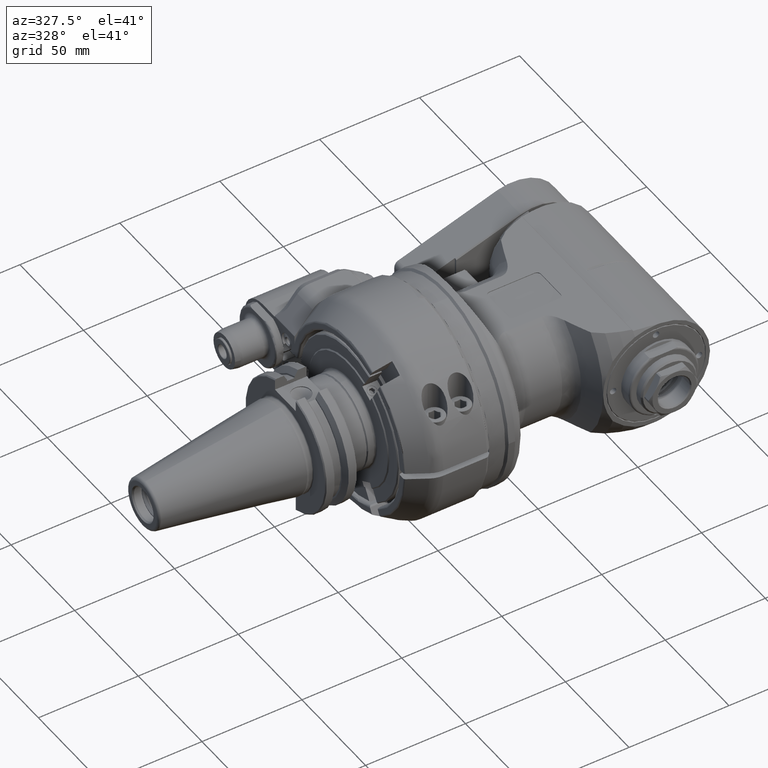
[diagram: clean part render]
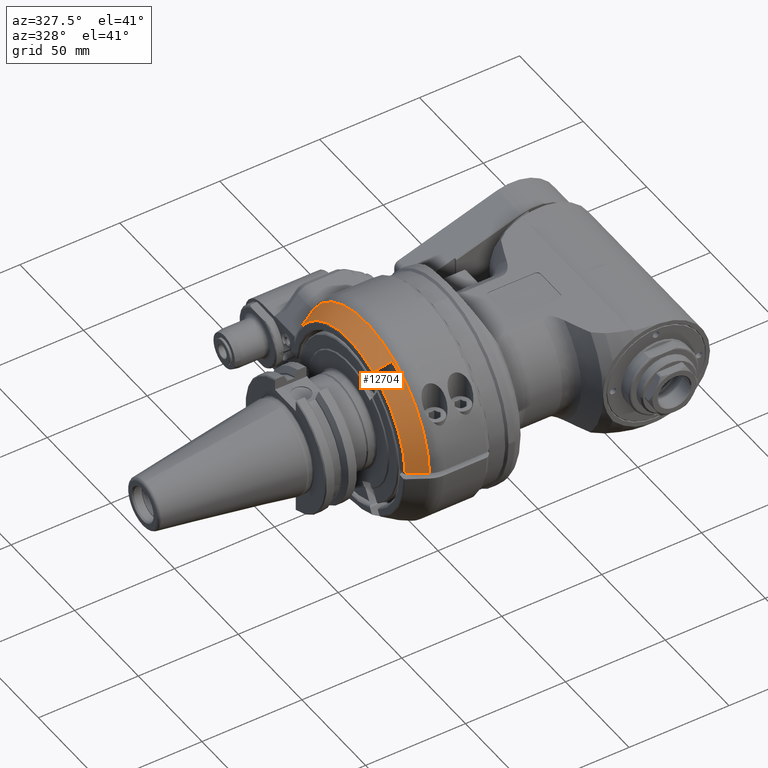
[diagram: same view with one face highlighted and labeled with its STEP entity id]
A machine part, auxiliary view. The second image highlights one B-rep face of the part: STEP entity #12704.
In plain terms, the highlighted conical surface has half-angle 30 deg.
Its self-contained STEP definition (entity closure, byte-faithful):
#289=(
BOUNDED_CURVE()
B_SPLINE_CURVE(2,(#21080,#21081,#21082),.UNSPECIFIED.,.F.,.F.)
B_SPLINE_CURVE_WITH_KNOTS((3,3),(-4.80707705791519,-2.95268713046296),
 .UNSPECIFIED.)
CURVE()
GEOMETRIC_REPRESENTATION_ITEM()
RATIONAL_B_SPLINE_CURVE((1.01149371983583,1.03091361245284,1.03364016221379))
REPRESENTATION_ITEM('')
);
#399=B_SPLINE_CURVE_WITH_KNOTS('',3,(#21198,#21199,#21200,#21201,#21202,
#21203,#21204,#21205,#21206,#21207),.UNSPECIFIED.,.F.,.F.,(4,3,3,4),(1.4337342611041E-5,
0.3333333333333,0.6666666666667,1.),.UNSPECIFIED.);
#402=B_SPLINE_CURVE_WITH_KNOTS('',3,(#21253,#21254,#21255,#21256,#21257,
#21258,#21259,#21260,#21261,#21262),.UNSPECIFIED.,.F.,.F.,(4,3,3,4),(0.,
0.3333333333333,0.6666666666667,0.999986602366628),.UNSPECIFIED.);
#406=B_SPLINE_CURVE_WITH_KNOTS('',3,(#21312,#21313,#21314,#21315,#21316,
#21317,#21318,#21319,#21320,#21321),.UNSPECIFIED.,.F.,.F.,(4,3,3,4),(2.38328188097675E-6,
0.3333333333333,0.6666666666667,1.),.UNSPECIFIED.);
#740=CONICAL_SURFACE('',#14173,46.84048999,0.523598775598299);
#1363=CIRCLE('',#14156,48.90747728811);
#1374=CIRCLE('',#14172,44.28867513459);
#1375=CIRCLE('',#14174,49.39230484541);
#1376=CIRCLE('',#14175,44.28867513459);
#2137=FACE_OUTER_BOUND('',#2952,.T.);
#2952=EDGE_LOOP('',(#9710,#9711,#9712,#9713,#9714,#9715,#9716,#9717));
#5654=VERTEX_POINT('',#21070);
#5655=VERTEX_POINT('',#21079);
#5680=VERTEX_POINT('',#21194);
#5682=VERTEX_POINT('',#21197);
#5684=VERTEX_POINT('',#21219);
#5695=VERTEX_POINT('',#21244);
#5700=VERTEX_POINT('',#21298);
#5701=VERTEX_POINT('',#21309);
#7117=EDGE_CURVE('',#5654,#5655,#289,.T.);
#7149=EDGE_CURVE('',#5682,#5680,#399,.T.);
#7153=EDGE_CURVE('',#5684,#5680,#1363,.T.);
#7166=EDGE_CURVE('',#5684,#5695,#402,.T.);
#7175=EDGE_CURVE('',#5700,#5695,#1374,.T.);
#7176=EDGE_CURVE('',#5655,#5701,#1375,.T.);
#7177=EDGE_CURVE('',#5682,#5654,#1376,.T.);
#7178=EDGE_CURVE('',#5700,#5701,#406,.T.);
#9710=ORIENTED_EDGE('',*,*,#7176,.F.);
#9711=ORIENTED_EDGE('',*,*,#7117,.F.);
#9712=ORIENTED_EDGE('',*,*,#7177,.F.);
#9713=ORIENTED_EDGE('',*,*,#7149,.T.);
#9714=ORIENTED_EDGE('',*,*,#7153,.F.);
#9715=ORIENTED_EDGE('',*,*,#7166,.T.);
#9716=ORIENTED_EDGE('',*,*,#7175,.F.);
#9717=ORIENTED_EDGE('',*,*,#7178,.T.);
#12704=ADVANCED_FACE('',(#2137),#740,.T.);
#14156=AXIS2_PLACEMENT_3D('',#21221,#16593,#16594);
#14172=AXIS2_PLACEMENT_3D('',#21307,#16631,#16632);
#14173=AXIS2_PLACEMENT_3D('',#21308,#16633,#16634);
#14174=AXIS2_PLACEMENT_3D('',#21310,#16635,#16636);
#14175=AXIS2_PLACEMENT_3D('',#21311,#16637,#16638);
#16593=DIRECTION('center_axis',(-1.,0.,0.));
#16594=DIRECTION('ref_axis',(0.,-0.560693997365684,0.828023092261376));
#16631=DIRECTION('center_axis',(-1.,0.,0.));
#16632=DIRECTION('ref_axis',(0.,-0.999426290895549,0.0338687033523017));
#16633=DIRECTION('center_axis',(1.,0.,0.));
#16634=DIRECTION('ref_axis',(0.,-1.,0.));
#16635=DIRECTION('center_axis',(1.,0.,0.));
#16636=DIRECTION('ref_axis',(0.,0.850334887822108,0.526241939180605));
#16637=DIRECTION('center_axis',(-1.,0.,0.));
#16638=DIRECTION('ref_axis',(0.,-0.429996871485802,0.902830377486504));
#21070=CARTESIAN_POINT('',(-51.,42.,14.05299772923));
#21079=CARTESIAN_POINT('',(-42.16025403784,42.,25.99230228245));
#21080=CARTESIAN_POINT('Ctrl Pts',(-50.9999999999919,42.,14.0529977292256));
#21081=CARTESIAN_POINT('Ctrl Pts',(-47.897889892267,42.,19.6974303643609));
#21082=CARTESIAN_POINT('Ctrl Pts',(-42.1602540378376,42.,25.992302282447));
#21194=CARTESIAN_POINT('',(-43.,-21.35995111525,43.9965205788));
#21197=CARTESIAN_POINT('',(-51.000000054817,-19.0439917563676,39.9851613015337));
#21198=CARTESIAN_POINT('Ctrl Pts',(-51.0000000936506,-19.0439917901449,
39.9851613594535));
#21199=CARTESIAN_POINT('Ctrl Pts',(-50.111001909048,-19.3014285975833,40.4310549896751));
#21200=CARTESIAN_POINT('Ctrl Pts',(-49.2222071099017,-19.5587779325861,
40.8767971131938));
#21201=CARTESIAN_POINT('Ctrl Pts',(-48.3333776153427,-19.8161122630835,
41.3225132481472));
#21202=CARTESIAN_POINT('Ctrl Pts',(-47.4445098887801,-20.0734576625286,
41.7682485550801));
#21203=CARTESIAN_POINT('Ctrl Pts',(-46.5556074638199,-20.3307880561776,
42.2139578712119));
#21204=CARTESIAN_POINT('Ctrl Pts',(-45.6667068043048,-20.5880951594333,
42.6596268471992));
#21205=CARTESIAN_POINT('Ctrl Pts',(-44.7778061447899,-20.845402262689,43.1052958231864));
#21206=CARTESIAN_POINT('Ctrl Pts',(-43.88890725072,-21.1026860755515,43.5509244590291));
#21207=CARTESIAN_POINT('Ctrl Pts',(-43.,-21.3599511152508,43.9965205787995));
#21219=CARTESIAN_POINT('',(-43.,-27.42212894174,40.4965205788));
#21221=CARTESIAN_POINT('Origin',(-43.,0.,0.));
#21244=CARTESIAN_POINT('',(-51.0000000512241,-25.1061695829229,36.485161300515));
#21253=CARTESIAN_POINT('Ctrl Pts',(-43.,-27.4221289417415,40.4965205787991));
#21254=CARTESIAN_POINT('Ctrl Pts',(-43.88890725073,-27.1648639020422,40.0509244590287));
#21255=CARTESIAN_POINT('Ctrl Pts',(-44.7778063956649,-26.9075800162392,
39.6052956968493));
#21256=CARTESIAN_POINT('Ctrl Pts',(-45.6667068043206,-26.6502729859206,
39.1596268471929));
#21257=CARTESIAN_POINT('Ctrl Pts',(-46.5556072129766,-26.392965955602,38.7139579975363));
#21258=CARTESIAN_POINT('Ctrl Pts',(-47.4445088853534,-26.1356357807677,
38.2682490604027));
#21259=CARTESIAN_POINT('Ctrl Pts',(-48.3333776153569,-25.8782900895719,
37.8225132481428));
#21260=CARTESIAN_POINT('Ctrl Pts',(-49.2222106191481,-25.6209547418459,
37.376795351298));
#21261=CARTESIAN_POINT('Ctrl Pts',(-50.1110106832139,-25.3636038790058,
36.9310505814872));
#21262=CARTESIAN_POINT('Ctrl Pts',(-51.0000000875135,-25.1061696140145,
36.4851613549132));
#21298=CARTESIAN_POINT('',(-51.0000000070242,-44.2632663158903,1.50000000010533));
#21307=CARTESIAN_POINT('Origin',(-51.,0.,0.));
#21308=CARTESIAN_POINT('Origin',(-46.58012701892,0.,0.));
#21309=CARTESIAN_POINT('',(-42.160265019228,-49.3695164173488,1.50000009631114));
#21310=CARTESIAN_POINT('Origin',(-42.16025403784,0.,0.));
#21311=CARTESIAN_POINT('Origin',(-51.,0.,0.));
#21312=CARTESIAN_POINT('Ctrl Pts',(-51.0000000083323,-44.2632663181547,
1.5));
#21313=CARTESIAN_POINT('Ctrl Pts',(-50.0177868668529,-44.830672865918,1.5));
#21314=CARTESIAN_POINT('Ctrl Pts',(-49.0356099513042,-45.3980459506009,
1.5));
#21315=CARTESIAN_POINT('Ctrl Pts',(-48.0534278016161,-45.9654109220482,
1.5));
#21316=CARTESIAN_POINT('Ctrl Pts',(-47.0712386294268,-46.5327799500966,
1.5));
#21317=CARTESIAN_POINT('Ctrl Pts',(-46.0890442230232,-47.1001408647934,
1.5));
#21318=CARTESIAN_POINT('Ctrl Pts',(-45.1068448132439,-47.6674946727968,
1.5));
#21319=CARTESIAN_POINT('Ctrl Pts',(-44.1246454034648,-48.2348484808001,
1.5));
#21320=CARTESIAN_POINT('Ctrl Pts',(-43.14244099031,-48.80219518211,1.5));
#21321=CARTESIAN_POINT('Ctrl Pts',(-42.16027599869,-49.36951007704,1.5));